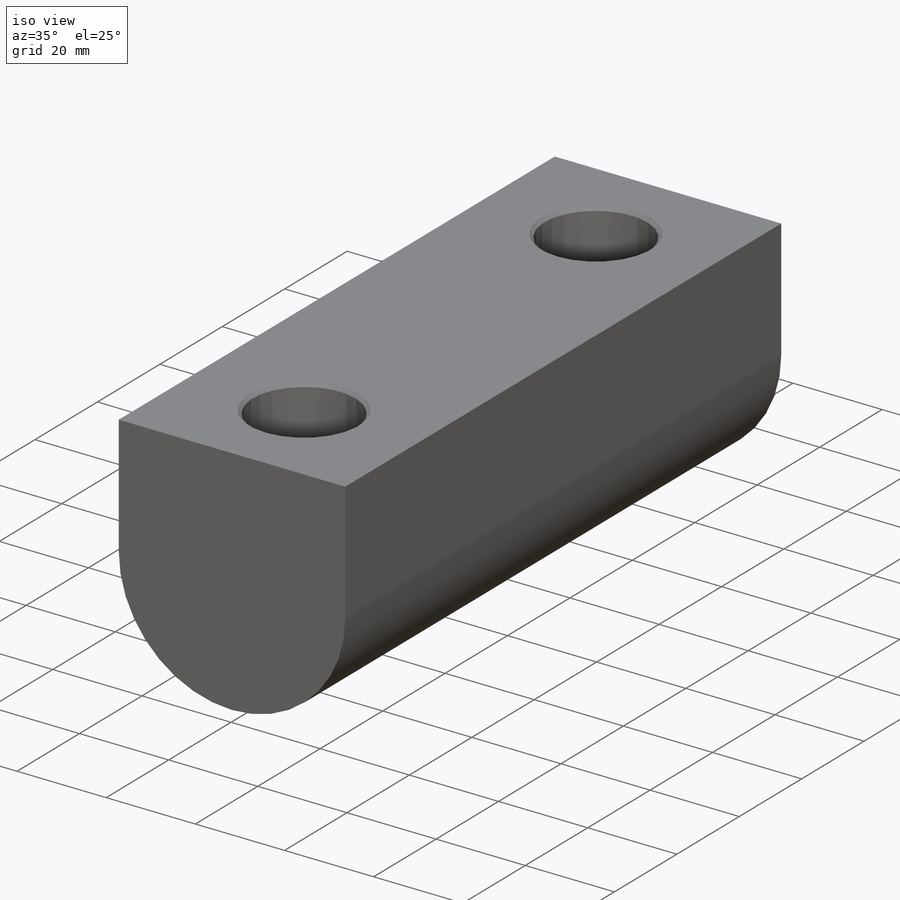
[diagram: iso view]
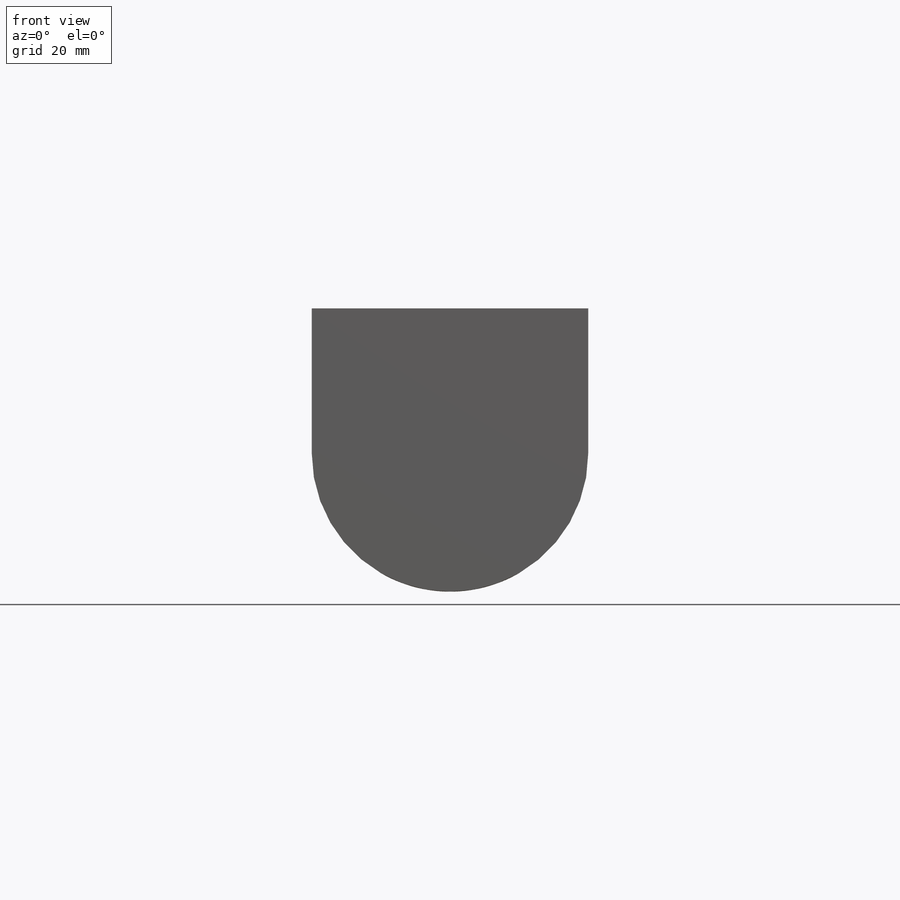
[diagram: front view]
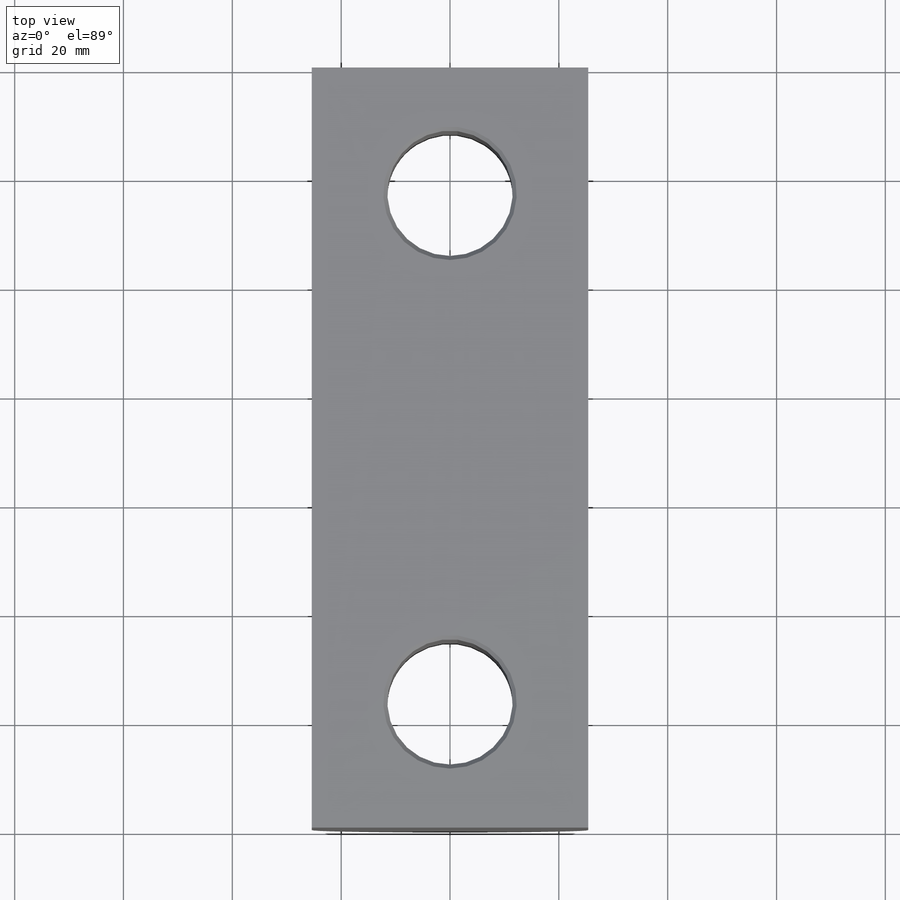
[diagram: top view]
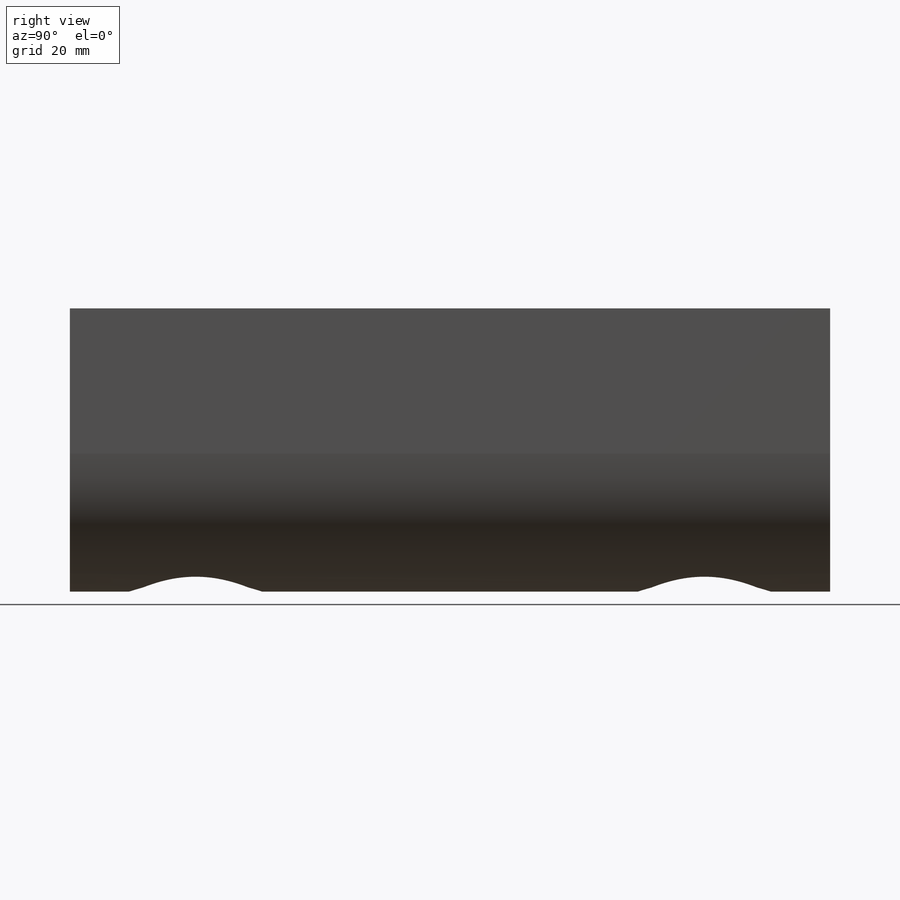
[diagram: right view]
SOLIDWORKS PART (.sldprt)
format: sldprt  version: not decoded by parser v0  size: 197,120 bytes
history: native  units: mm
features: sketch x3, material x1, extrude x1, hole x1 (+16 scaffold rows collapsed)
feature tree (22):
  scaffold x16  (default folders/planes/origin — collapsed)
  material  "6061-T6 Al"
  sketch  "Sketch1"  dims[D1=22.86mm D2=25.4mm D3=26.67mm]
  extrude  "Extrude1"  Depth=139.7mm
  hole  "29/32 (0.90625) Diameter Hole1"  Diameter=23.01875mm Depth=52.07mm
  sketch  "Sketch3"  dims[D1=93.472mm]
  sketch  "Sketch2"  dims[hole-wizard template sketch: 46 standard entries collapsed; hole parameters kept: c15.Thru Hole Dia.=~23.01875mm c15.Thru Hole Depth=52.07mm c15.Near C'Sink Dia.=24.5364mm c15.D4=~3.666174mm c15.Near C'Sink Angle=90.0deg c15.Far C'Sink Dia.=24.5364mm c15.D6=~9.919017mm c15.Far C'Sink Angle=90.0deg]
decode coverage: 5 of 5 modeling features carry decoded parameters
note: ~ marks probable driven/reference dimensions
note: suppression state not decoded; provenance and decode notes live in map.json
